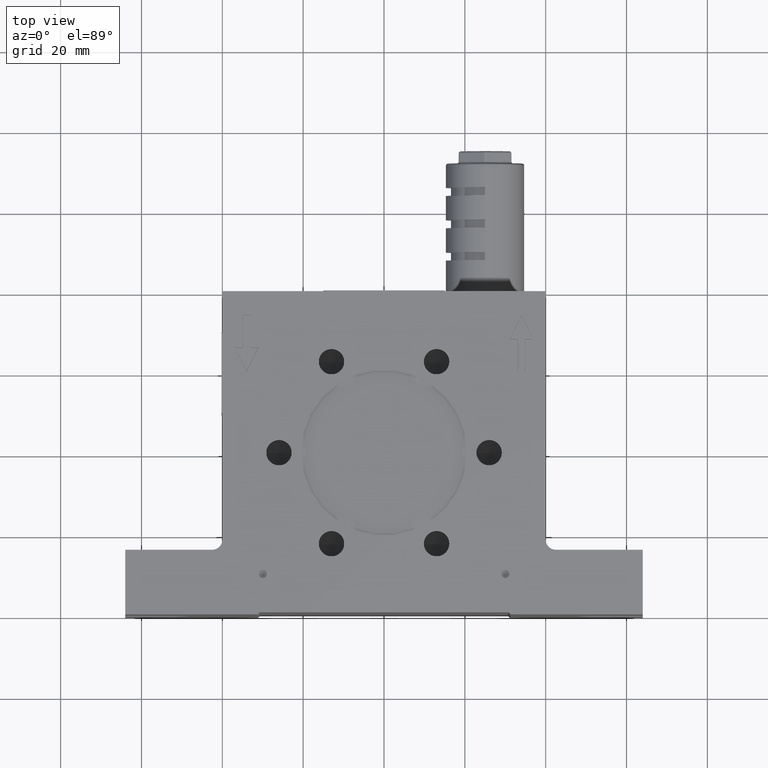
[diagram: clean part render]
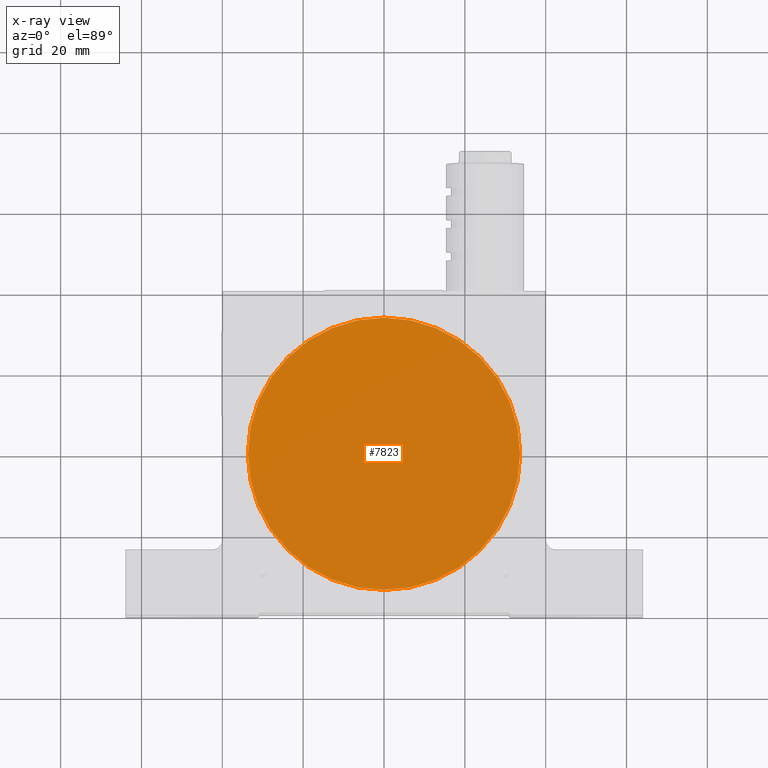
[diagram: x-ray — body ghosted, one internal face saturated and labeled with its STEP entity id]
A machine part, top view, then the same camera in x-ray: the body is ghosted and one INTERNAL B-rep face — a face not visible from any outside direction — is saturated and labeled: STEP entity #7823.
In plain terms, the highlighted planar face has unit normal (0, 0, 1).
Its self-contained STEP definition (entity closure, byte-faithful):
#128 = DIRECTION ( 'NONE',  ( 1.000000000000000000, 0.0000000000000000000, 0.0000000000000000000 ) ) ;
#413 = CARTESIAN_POINT ( 'NONE',  ( 0.0000000000000000000, 0.0000000000000000000, 11.50000000000000000 ) ) ;
#1284 = AXIS2_PLACEMENT_3D ( 'NONE', #413, #8766, #128 ) ;
#1899 = EDGE_CURVE ( 'NONE', #6647, #10554, #4663, .T. ) ;
#2228 = EDGE_LOOP ( 'NONE', ( #17391, #13866 ) ) ;
#2693 = PLANE ( 'NONE',  #10713 ) ;
#2695 = DIRECTION ( 'NONE',  ( -0.0000000000000000000, -0.0000000000000000000, -1.000000000000000000 ) ) ;
#4231 = DIRECTION ( 'NONE',  ( 1.000000000000000000, 0.0000000000000000000, 0.0000000000000000000 ) ) ;
#4375 = DIRECTION ( 'NONE',  ( 0.0000000000000000000, 0.0000000000000000000, 1.000000000000000000 ) ) ;
#4663 = CIRCLE ( 'NONE', #9066, 33.68500000000000200 ) ;
#6647 = VERTEX_POINT ( 'NONE', #9837 ) ;
#7755 = DIRECTION ( 'NONE',  ( 1.000000000000000000, 0.0000000000000000000, 0.0000000000000000000 ) ) ;
#7823 = ADVANCED_FACE ( 'NONE', ( #8665 ), #2693, .F. ) ;
#8665 = FACE_OUTER_BOUND ( 'NONE', #2228, .T. ) ;
#8766 = DIRECTION ( 'NONE',  ( -0.0000000000000000000, -0.0000000000000000000, -1.000000000000000000 ) ) ;
#9003 = CIRCLE ( 'NONE', #1284, 33.68500000000000200 ) ;
#9066 = AXIS2_PLACEMENT_3D ( 'NONE', #14350, #2695, #4231 ) ;
#9837 = CARTESIAN_POINT ( 'NONE',  ( -33.68500000000000200, 4.137469210919332900E-015, 11.50000000000000000 ) ) ;
#10554 = VERTEX_POINT ( 'NONE', #18843 ) ;
#10713 = AXIS2_PLACEMENT_3D ( 'NONE', #14428, #4375, #7755 ) ;
#12135 = EDGE_CURVE ( 'NONE', #10554, #6647, #9003, .T. ) ;
#13866 = ORIENTED_EDGE ( 'NONE', *, *, #1899, .T. ) ;
#14350 = CARTESIAN_POINT ( 'NONE',  ( 0.0000000000000000000, 0.0000000000000000000, 11.50000000000000000 ) ) ;
#14428 = CARTESIAN_POINT ( 'NONE',  ( 0.0000000000000000000, 0.0000000000000000000, 11.50000000000000000 ) ) ;
#17391 = ORIENTED_EDGE ( 'NONE', *, *, #12135, .T. ) ;
#18843 = CARTESIAN_POINT ( 'NONE',  ( 33.68500000000000200, 0.0000000000000000000, 11.50000000000000000 ) ) ;